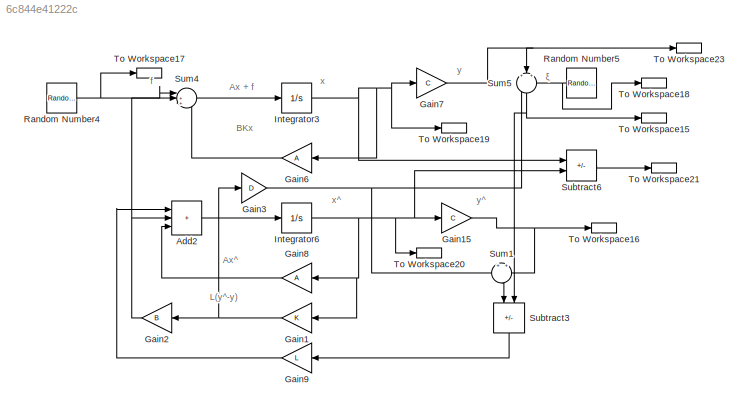
MODEL slx_6c844e41222c
KIND model
CONFIG AbsTol = auto
CONFIG EnableMultiTasking = off
CONFIG FixedStep = auto
CONFIG MaxStep = auto
CONFIG MinStep = auto
CONFIG RelTol = 1e-3
CONFIG SampleTimeConstraint = Unconstrained
CONFIG SolverName = VariableStepAuto
CONFIG StartTime = 0.0
CONFIG StopTime = 10
BLOCK [Sum] Add2
  IconShape = rectangular
  Inputs = +++
  Ports = [3, 1]
BLOCK [Gain] Gain1
  Gain = K
  Multiplication = Matrix(K*u)
  NameLocation = top
BLOCK [Gain] Gain15
  Gain = C
  Multiplication = Matrix(K*u)
BLOCK [Gain] Gain2
  Gain = B
  Multiplication = Matrix(K*u)
  NameLocation = top
BLOCK [Gain] Gain3
  Gain = D
  Multiplication = Matrix(K*u) (u vector)
BLOCK [Gain] Gain6
  Gain = A
  Multiplication = Matrix(K*u) (u vector)
  NameLocation = top
BLOCK [Gain] Gain7
  Gain = C
  Multiplication = Matrix(K*u)
BLOCK [Gain] Gain8
  Gain = A
  Multiplication = Matrix(K*u)
  NameLocation = top
BLOCK [Gain] Gain9
  Gain = L
  Multiplication = Matrix(K*u)
  NameLocation = top
BLOCK [Integrator] Integrator3
  InitialCondition = x0
  Ports = [1, 1]
BLOCK [Integrator] Integrator6
  InitialCondition = x_0
  Ports = [1, 1]
BLOCK [RandomNumber] Random Number4
  SampleTime = 0000.1
  Seed = [13; 14; 15; 16]
  Variance = 5
BLOCK [RandomNumber] Random Number5
  NameLocation = top
  SampleTime = 0000.1
  Seed = [17; 18]
  Variance = 25
BLOCK [Sum] Subtract3
  IconShape = rectangular
  Inputs = +-
  NameLocation = left
  Ports = [2, 1]
BLOCK [Sum] Subtract6
  IconShape = rectangular
  Inputs = +-
  Ports = [2, 1]
BLOCK [Sum] Sum1
  Inputs = +|+
  NameLocation = left
  Ports = [2, 1]
BLOCK [Sum] Sum4
  Inputs = |+++
  Ports = [3, 1]
BLOCK [Sum] Sum5
  Inputs = +|++
  NameLocation = left
  Ports = [3, 1]
BLOCK [ToWorkspace] To Workspace15
  FixptAsFi = on
  MaxDataPoints = inf
  Ports = [1]
  SampleTime = -1
  SaveFormat = Timeseries
  VariableName = y_3
BLOCK [ToWorkspace] To Workspace16
  FixptAsFi = on
  MaxDataPoints = inf
  Ports = [1]
  SampleTime = -1
  SaveFormat = Timeseries
  VariableName = y_3_
BLOCK [ToWorkspace] To Workspace17
  FixptAsFi = on
  MaxDataPoints = inf
  Ports = [1]
  SampleTime = -1
  SaveFormat = Timeseries
  VariableName = f_3
BLOCK [ToWorkspace] To Workspace18
  FixptAsFi = on
  MaxDataPoints = inf
  Ports = [1]
  SampleTime = -1
  SaveFormat = Timeseries
  VariableName = k_3
BLOCK [ToWorkspace] To Workspace19
  FixptAsFi = on
  MaxDataPoints = inf
  Ports = [1]
  SampleTime = 0.0001
  SaveFormat = Timeseries
  VariableName = x_3
BLOCK [ToWorkspace] To Workspace20
  FixptAsFi = on
  MaxDataPoints = inf
  Ports = [1]
  SampleTime = -1
  SaveFormat = Timeseries
  VariableName = x_3_
BLOCK [ToWorkspace] To Workspace21
  FixptAsFi = on
  MaxDataPoints = inf
  Ports = [1]
  SampleTime = -1
  SaveFormat = Timeseries
  VariableName = e_3
BLOCK [ToWorkspace] To Workspace23
  FixptAsFi = on
  MaxDataPoints = inf
  Ports = [1]
  SampleTime = -1
  SaveFormat = Timeseries
  VariableName = y_f_3
ANNOTATION (root): Ax + f
ANNOTATION (root): Ax^
ANNOTATION (root): BKx
ANNOTATION (root): L(y^-y)
ANNOTATION (root): f
ANNOTATION (root): x
ANNOTATION (root): x^
ANNOTATION (root): y
ANNOTATION (root): y^
ANNOTATION (root): ξ
LINE Add2:1 -> Integrator6:1
NET Gain15:1 -> Sum1:2, To Workspace16:1
NET Gain1:1 -> Gain2:1, Gain3:1
NET Gain2:1 -> Add2:2, Sum4:2
NET Gain3:1 -> Sum1:1, Sum5:1
LINE Gain6:1 -> Sum4:3
NET Gain7:1 -> Sum5:2, To Workspace23:1
LINE Gain8:1 -> Add2:3
LINE Gain9:1 -> Add2:1
NET Integrator3:1 -> Gain6:1, Gain7:1, Subtract6:1, To Workspace19:1
NET Integrator6:1 -> Gain15:1, Gain1:1, Gain8:1, Subtract6:2, To Workspace20:1
NET Random Number4:1 -> Sum4:1, To Workspace17:1
NET Random Number5:1 -> Sum5:3, To Workspace18:1
LINE Subtract3:1 -> Gain9:1
LINE Subtract6:1 -> To Workspace21:1
LINE Sum1:1 -> Subtract3:1
LINE Sum4:1 -> Integrator3:1
NET Sum5:1 -> Subtract3:2, To Workspace15:1
note: NET lines group one-source signal fan-out (src -> all destinations, sorted); 1:1 wires keep LINE
